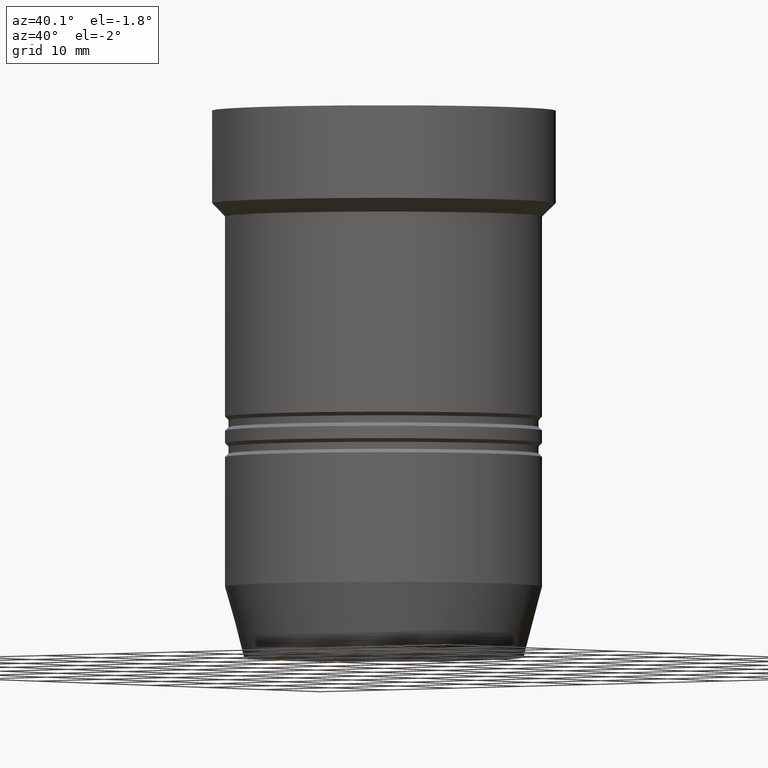
[diagram: clean part render]
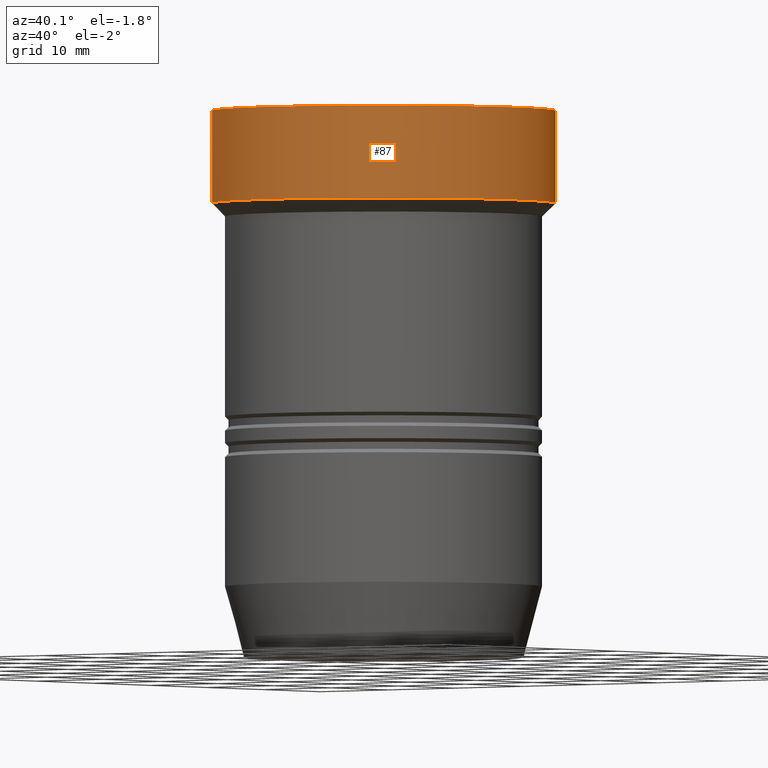
[diagram: same view with one face highlighted and labeled with its STEP entity id]
A machine part, auxiliary view. The second image highlights one B-rep face of the part: STEP entity #87.
In plain terms, the highlighted cylindrical surface (bore or boss wall) has radius 19.5 mm, axis along (0, 0, -1).
Its self-contained STEP definition (entity closure, byte-faithful):
#87=ADVANCED_FACE('',(#125,#126),#127,.T.);
#125=FACE_BOUND('',#165,.T.);
#126=FACE_BOUND('',#166,.T.);
#127=CYLINDRICAL_SURFACE('',#167,19.5);
#165=EDGE_LOOP('',(#229));
#166=EDGE_LOOP('',(#230));
#167=AXIS2_PLACEMENT_3D('',#231,#232,#233);
#229=ORIENTED_EDGE('',*,*,#250,.F.);
#230=ORIENTED_EDGE('',*,*,#249,.T.);
#231=CARTESIAN_POINT('',(3.2146978477618E-016,6.4293956955236E-016,-5.25));
#232=DIRECTION('',(6.12323399573677E-017,1.22464679914735E-016,-1.0));
#233=DIRECTION('',(-1.23259516440783E-032,1.0,1.22464679914735E-016));
#249=EDGE_CURVE('',#273,#273,#274,.T.);
#250=EDGE_CURVE('',#275,#275,#276,.T.);
#273=VERTEX_POINT('',#299);
#274=CIRCLE('',#300,19.5);
#275=VERTEX_POINT('',#301);
#276=CIRCLE('',#302,19.5);
#299=CARTESIAN_POINT('',(6.4293956955236E-016,19.5,-10.5));
#300=AXIS2_PLACEMENT_3D('',#336,#337,#338);
#301=CARTESIAN_POINT('',(-2.40356057059527E-031,19.5,2.38806125833734E-015));
#302=AXIS2_PLACEMENT_3D('',#339,#340,#341);
#336=CARTESIAN_POINT('',(6.4293956955236E-016,1.28587913910472E-015,-10.5));
#337=DIRECTION('',(-6.12323399573677E-017,-1.22464679914735E-016,1.0));
#338=DIRECTION('',(-1.23259516440783E-032,1.0,1.22464679914735E-016));
#339=CARTESIAN_POINT('',(0.0,0.0,0.0));
#340=DIRECTION('',(-6.12323399573677E-017,-1.22464679914735E-016,1.0));
#341=DIRECTION('',(-1.23259516440783E-032,1.0,1.22464679914735E-016));